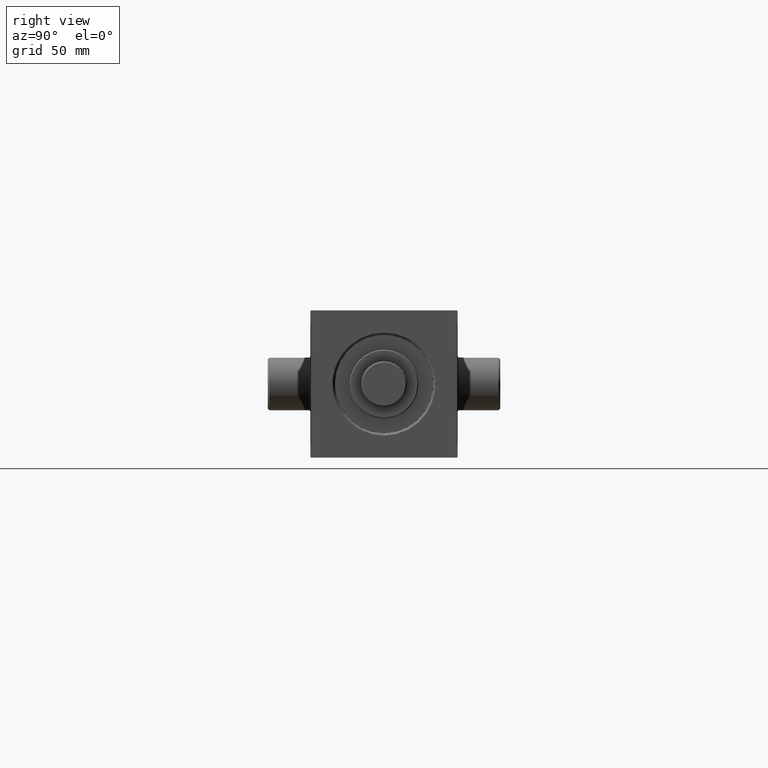
[diagram: clean part render]
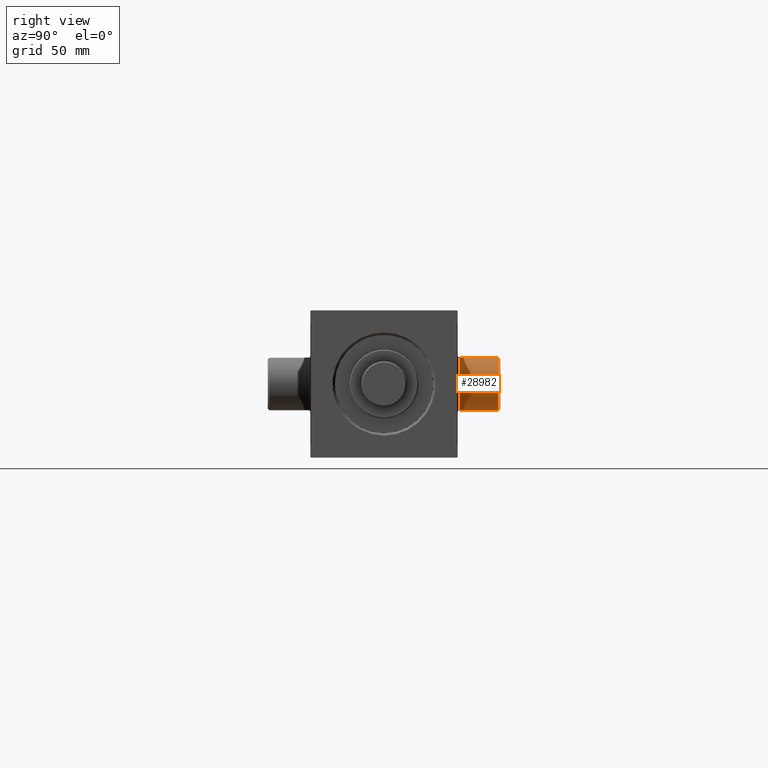
[diagram: same view with one face highlighted and labeled with its STEP entity id]
A machine part, right view. The second image highlights one B-rep face of the part: STEP entity #28982.
In plain terms, the highlighted cylindrical surface (edge-blend (fillet) strip) has radius 16 mm, axis along (0, -1, 0).
Its self-contained STEP definition (entity closure, byte-faithful):
#823 = EDGE_LOOP ( 'NONE', ( #38772, #35392, #17019, #8531 ) ) ;
#1323 = CIRCLE ( 'NONE', #41312, 16.00000000000000711 ) ;
#3252 = AXIS2_PLACEMENT_3D ( 'NONE', #44104, #41479, #40566 ) ;
#7024 = DIRECTION ( 'NONE',  ( -0.000000000000000000, -1.000000000000000000, 8.673617379883977540E-17 ) ) ;
#8531 = ORIENTED_EDGE ( 'NONE', *, *, #44245, .F. ) ;
#9643 = AXIS2_PLACEMENT_3D ( 'NONE', #39901, #7024, #20980 ) ;
#13707 = DIRECTION ( 'NONE',  ( -0.000000000000000000, -1.000000000000000000, 8.673617379884036705E-17 ) ) ;
#14801 = CARTESIAN_POINT ( 'NONE',  ( 18.50000000000000000, 69.99999999999995737, -16.00000000000001421 ) ) ;
#14888 = CARTESIAN_POINT ( 'NONE',  ( 18.50000000000000355, 69.99999999999995737, 16.00000000000000000 ) ) ;
#15531 = VERTEX_POINT ( 'NONE', #14801 ) ;
#17019 = ORIENTED_EDGE ( 'NONE', *, *, #43732, .T. ) ;
#17023 = LINE ( 'NONE', #24117, #31408 ) ;
#17189 = DIRECTION ( 'NONE',  ( 0.000000000000000000, 0.000000000000000000, 1.000000000000000000 ) ) ;
#19113 = CARTESIAN_POINT ( 'NONE',  ( 18.50000000000000000, 45.99999999999998579, -16.00000000000001066 ) ) ;
#20980 = DIRECTION ( 'NONE',  ( 0.000000000000000000, 0.000000000000000000, 1.000000000000000000 ) ) ;
#21816 = VERTEX_POINT ( 'NONE', #19113 ) ;
#22819 = FACE_OUTER_BOUND ( 'NONE', #823, .T. ) ;
#22899 = EDGE_CURVE ( 'NONE', #25784, #25231, #17023, .T. ) ;
#24048 = CARTESIAN_POINT ( 'NONE',  ( 18.50000000000000000, 45.99999999999998579, -3.556183125752453755E-15 ) ) ;
#24117 = CARTESIAN_POINT ( 'NONE',  ( 18.50000000000000355, 46.00000000000000000, 16.00000000000000355 ) ) ;
#24812 = LINE ( 'NONE', #39245, #37541 ) ;
#25231 = VERTEX_POINT ( 'NONE', #36999 ) ;
#25784 = VERTEX_POINT ( 'NONE', #14888 ) ;
#28982 = ADVANCED_FACE ( 'NONE', ( #22819 ), #29681, .T. ) ;
#29681 = CYLINDRICAL_SURFACE ( 'NONE', #3252, 16.00000000000000711 ) ;
#30036 = CIRCLE ( 'NONE', #9643, 16.00000000000000711 ) ;
#31408 = VECTOR ( 'NONE', #13707, 1000.000000000000000 ) ;
#31857 = DIRECTION ( 'NONE',  ( -0.000000000000000000, 1.000000000000000000, 0.000000000000000000 ) ) ;
#32171 = DIRECTION ( 'NONE',  ( -0.000000000000000000, -1.000000000000000000, 8.673617379884036705E-17 ) ) ;
#35392 = ORIENTED_EDGE ( 'NONE', *, *, #22899, .T. ) ;
#36999 = CARTESIAN_POINT ( 'NONE',  ( 18.50000000000000355, 45.99999999999998579, 16.00000000000000355 ) ) ;
#37541 = VECTOR ( 'NONE', #32171, 1000.000000000000000 ) ;
#38772 = ORIENTED_EDGE ( 'NONE', *, *, #45473, .T. ) ;
#39245 = CARTESIAN_POINT ( 'NONE',  ( 18.50000000000000000, 46.00000000000000000, -16.00000000000001066 ) ) ;
#39901 = CARTESIAN_POINT ( 'NONE',  ( 18.50000000000000000, 69.99999999999995737, -5.637851296924619901E-15 ) ) ;
#40566 = DIRECTION ( 'NONE',  ( 0.000000000000000000, 0.000000000000000000, -1.000000000000000000 ) ) ;
#41312 = AXIS2_PLACEMENT_3D ( 'NONE', #24048, #31857, #17189 ) ;
#41479 = DIRECTION ( 'NONE',  ( -0.000000000000000000, -1.000000000000000000, 8.673617379884036705E-17 ) ) ;
#43732 = EDGE_CURVE ( 'NONE', #25231, #21816, #1323, .T. ) ;
#44104 = CARTESIAN_POINT ( 'NONE',  ( 18.50000000000000000, 46.00000000000000000, -3.556183125752455332E-15 ) ) ;
#44245 = EDGE_CURVE ( 'NONE', #15531, #21816, #24812, .T. ) ;
#45473 = EDGE_CURVE ( 'NONE', #15531, #25784, #30036, .T. ) ;